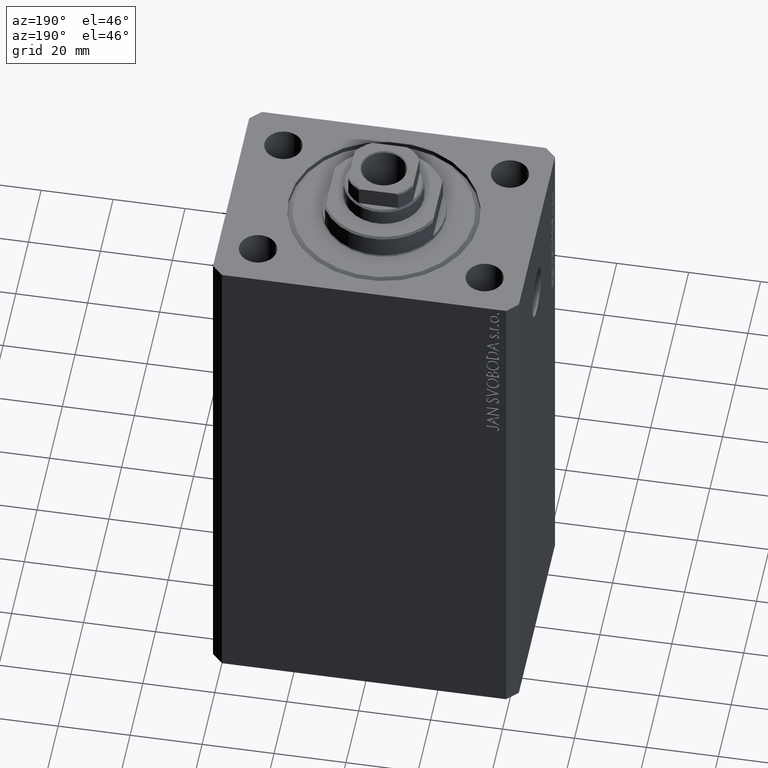
[diagram: clean part render]
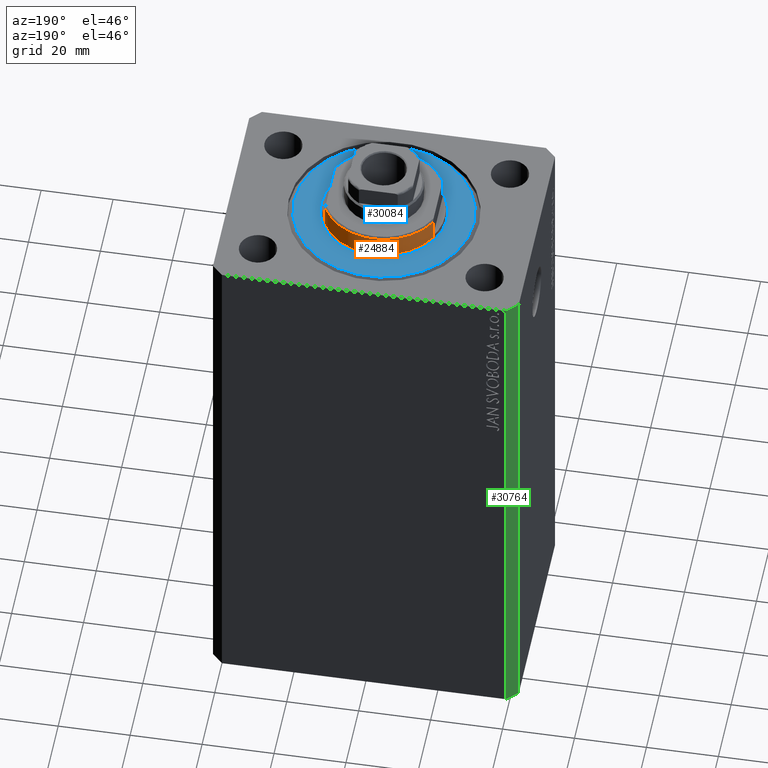
[diagram: same view with three faces highlighted in distinct colors, each labeled with its STEP entity id]
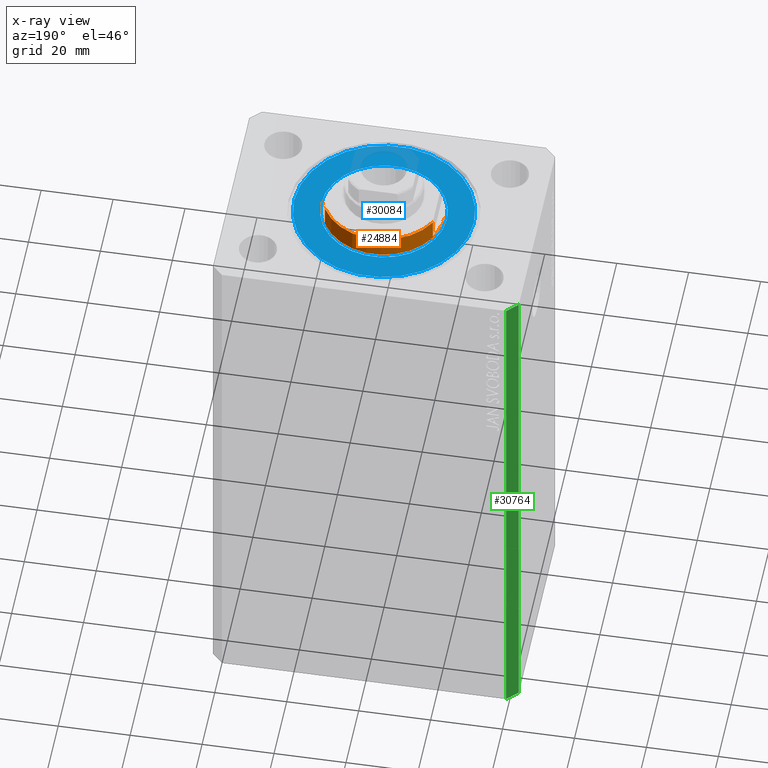
[diagram: x-ray of the same camera — body ghosted, the three highlighted faces saturated]
A machine part, auxiliary view with three faces highlighted in distinct colors.
The next image is the same camera in x-ray (body ghosted, the three faces saturated) — at least one of them is partly hidden behind the body in this view.
Their STEP definitions:

[orange] entity #24884 — the highlighted cylindrical surface (partial cylindrical patch) has radius 17 mm, axis along (0, 0, -1).
#227 = CARTESIAN_POINT ( 'NONE',  ( 14.99999999999999645, 8.000000000000003553, -1.000000000000000000 ) ) ;
#381 = DIRECTION ( 'NONE',  ( -1.000000000000000000, 0.000000000000000000, 0.000000000000000000 ) ) ;
#883 = CARTESIAN_POINT ( 'NONE',  ( 17.00000000000000000, 0.000000000000000000, -1.000000000000000000 ) ) ;
#1557 = EDGE_CURVE ( 'NONE', #23623, #10506, #26157, .T. ) ;
#2156 = DIRECTION ( 'NONE',  ( -1.000000000000000000, 0.000000000000000000, 0.000000000000000000 ) ) ;
#2224 = VERTEX_POINT ( 'NONE', #14977 ) ;
#2701 = LINE ( 'NONE', #30023, #35655 ) ;
#3832 = ORIENTED_EDGE ( 'NONE', *, *, #1557, .T. ) ;
#6582 = EDGE_CURVE ( 'NONE', #38173, #39885, #42112, .T. ) ;
#6943 = EDGE_LOOP ( 'NONE', ( #32971, #20167, #32699, #25164, #28456, #36541, #3832, #36187 ) ) ;
#7025 = EDGE_CURVE ( 'NONE', #22996, #38173, #2701, .T. ) ;
#7573 = DIRECTION ( 'NONE',  ( 0.000000000000000000, 0.000000000000000000, -1.000000000000000000 ) ) ;
#7598 = EDGE_CURVE ( 'NONE', #22461, #39885, #15485, .T. ) ;
#8107 = DIRECTION ( 'NONE',  ( -0.000000000000000000, -0.000000000000000000, 1.000000000000000000 ) ) ;
#8112 = VERTEX_POINT ( 'NONE', #227 ) ;
#8242 = CARTESIAN_POINT ( 'NONE',  ( 17.00000000000000000, 0.000000000000000000, -7.000000000000000000 ) ) ;
#8484 = CARTESIAN_POINT ( 'NONE',  ( 0.000000000000000000, 0.000000000000000000, -0.4999999999999995559 ) ) ;
#9126 = CARTESIAN_POINT ( 'NONE',  ( 0.000000000000000000, 0.000000000000000000, -6.500000000000013323 ) ) ;
#9151 = DIRECTION ( 'NONE',  ( -0.000000000000000000, -0.000000000000000000, -1.000000000000000000 ) ) ;
#9590 = AXIS2_PLACEMENT_3D ( 'NONE', #15728, #43219, #16172 ) ;
#9712 = CARTESIAN_POINT ( 'NONE',  ( 15.00000000000000000, 8.000000000000001776, -7.000000000000000000 ) ) ;
#10506 = VERTEX_POINT ( 'NONE', #11284 ) ;
#10955 = CARTESIAN_POINT ( 'NONE',  ( 0.000000000000000000, 0.000000000000000000, -1.000000000000000000 ) ) ;
#11019 = DIRECTION ( 'NONE',  ( 0.000000000000000000, 0.000000000000000000, 1.000000000000000000 ) ) ;
#11284 = CARTESIAN_POINT ( 'NONE',  ( -15.00000000000000000, 8.000000000000001776, -6.500000000000013323 ) ) ;
#12313 = VECTOR ( 'NONE', #8107, 1000.000000000000000 ) ;
#12532 = EDGE_CURVE ( 'NONE', #23623, #8112, #23276, .T. ) ;
#13322 = AXIS2_PLACEMENT_3D ( 'NONE', #8484, #9151, #19562 ) ;
#14222 = EDGE_CURVE ( 'NONE', #8112, #22461, #32127, .T. ) ;
#14977 = CARTESIAN_POINT ( 'NONE',  ( -14.99999999999999645, 8.000000000000003553, -1.000000000000000000 ) ) ;
#15485 = LINE ( 'NONE', #8242, #42857 ) ;
#15728 = CARTESIAN_POINT ( 'NONE',  ( 0.000000000000000000, 0.000000000000000000, -1.000000000000000000 ) ) ;
#16172 = DIRECTION ( 'NONE',  ( -1.000000000000000000, 0.000000000000000000, 0.000000000000000000 ) ) ;
#19082 = CARTESIAN_POINT ( 'NONE',  ( 15.00000000000000000, 8.000000000000001776, -6.500000000000013323 ) ) ;
#19562 = DIRECTION ( 'NONE',  ( 1.000000000000000000, 0.000000000000000000, 0.000000000000000000 ) ) ;
#20035 = CYLINDRICAL_SURFACE ( 'NONE', #39667, 17.00000000000000000 ) ;
#20167 = ORIENTED_EDGE ( 'NONE', *, *, #7025, .T. ) ;
#20579 = VECTOR ( 'NONE', #40847, 1000.000000000000000 ) ;
#22461 = VERTEX_POINT ( 'NONE', #883 ) ;
#22996 = VERTEX_POINT ( 'NONE', #24009 ) ;
#23163 = CARTESIAN_POINT ( 'NONE',  ( -17.00000000000000000, 2.081899558550500280E-15, -0.4999999999999995559 ) ) ;
#23276 = LINE ( 'NONE', #9712, #20579 ) ;
#23623 = VERTEX_POINT ( 'NONE', #19082 ) ;
#24009 = CARTESIAN_POINT ( 'NONE',  ( -17.00000000000000000, 2.081899558550500280E-15, -1.000000000000000000 ) ) ;
#24400 = LINE ( 'NONE', #25278, #12313 ) ;
#24884 = ADVANCED_FACE ( 'NONE', ( #27013 ), #20035, .T. ) ;
#25164 = ORIENTED_EDGE ( 'NONE', *, *, #7598, .F. ) ;
#25278 = CARTESIAN_POINT ( 'NONE',  ( -15.00000000000000000, 8.000000000000001776, -7.000000000000000000 ) ) ;
#25721 = EDGE_CURVE ( 'NONE', #10506, #2224, #24400, .T. ) ;
#26157 = CIRCLE ( 'NONE', #44136, 17.00000000000000000 ) ;
#27013 = FACE_OUTER_BOUND ( 'NONE', #6943, .T. ) ;
#28456 = ORIENTED_EDGE ( 'NONE', *, *, #14222, .F. ) ;
#30023 = CARTESIAN_POINT ( 'NONE',  ( -17.00000000000000000, 2.081899558550500280E-15, -7.000000000000000000 ) ) ;
#30187 = DIRECTION ( 'NONE',  ( 1.000000000000000000, 0.000000000000000000, 0.000000000000000000 ) ) ;
#30412 = CARTESIAN_POINT ( 'NONE',  ( 0.000000000000000000, 0.000000000000000000, -7.000000000000000000 ) ) ;
#32127 = CIRCLE ( 'NONE', #41473, 17.00000000000000000 ) ;
#32699 = ORIENTED_EDGE ( 'NONE', *, *, #6582, .T. ) ;
#32971 = ORIENTED_EDGE ( 'NONE', *, *, #38287, .F. ) ;
#33775 = DIRECTION ( 'NONE',  ( -0.000000000000000000, -0.000000000000000000, 1.000000000000000000 ) ) ;
#35333 = DIRECTION ( 'NONE',  ( -0.000000000000000000, -0.000000000000000000, 1.000000000000000000 ) ) ;
#35655 = VECTOR ( 'NONE', #44636, 1000.000000000000000 ) ;
#36187 = ORIENTED_EDGE ( 'NONE', *, *, #25721, .T. ) ;
#36541 = ORIENTED_EDGE ( 'NONE', *, *, #12532, .F. ) ;
#38173 = VERTEX_POINT ( 'NONE', #23163 ) ;
#38287 = EDGE_CURVE ( 'NONE', #22996, #2224, #41323, .T. ) ;
#39667 = AXIS2_PLACEMENT_3D ( 'NONE', #30412, #33775, #30187 ) ;
#39885 = VERTEX_POINT ( 'NONE', #44582 ) ;
#40847 = DIRECTION ( 'NONE',  ( -0.000000000000000000, -0.000000000000000000, 1.000000000000000000 ) ) ;
#41323 = CIRCLE ( 'NONE', #9590, 17.00000000000000000 ) ;
#41473 = AXIS2_PLACEMENT_3D ( 'NONE', #10955, #7573, #381 ) ;
#42112 = CIRCLE ( 'NONE', #13322, 17.00000000000000000 ) ;
#42857 = VECTOR ( 'NONE', #35333, 1000.000000000000000 ) ;
#43219 = DIRECTION ( 'NONE',  ( 0.000000000000000000, 0.000000000000000000, -1.000000000000000000 ) ) ;
#44136 = AXIS2_PLACEMENT_3D ( 'NONE', #9126, #11019, #2156 ) ;
#44582 = CARTESIAN_POINT ( 'NONE',  ( 17.00000000000000000, 0.000000000000000000, -0.4999999999999995559 ) ) ;
#44636 = DIRECTION ( 'NONE',  ( -0.000000000000000000, -0.000000000000000000, 1.000000000000000000 ) ) ;

[blue] entity #30084 — the highlighted planar face has unit normal (0, 0, -1).
#953 = ORIENTED_EDGE ( 'NONE', *, *, #40778, .T. ) ;
#1134 = CIRCLE ( 'NONE', #11230, 17.50000000000000000 ) ;
#1168 = CIRCLE ( 'NONE', #40759, 17.50000000000000000 ) ;
#1407 = ORIENTED_EDGE ( 'NONE', *, *, #14953, .T. ) ;
#2032 = CARTESIAN_POINT ( 'NONE',  ( 0.000000000000000000, 0.000000000000000000, 0.000000000000000000 ) ) ;
#2055 = CIRCLE ( 'NONE', #21558, 24.99999999999998224 ) ;
#4268 = DIRECTION ( 'NONE',  ( 1.000000000000000000, 0.000000000000000000, 0.000000000000000000 ) ) ;
#9741 = CARTESIAN_POINT ( 'NONE',  ( 24.99999999999998224, 0.000000000000000000, 0.000000000000000000 ) ) ;
#9849 = CARTESIAN_POINT ( 'NONE',  ( 0.000000000000000000, 0.000000000000000000, 0.000000000000000000 ) ) ;
#10873 = DIRECTION ( 'NONE',  ( 1.000000000000000000, 0.000000000000000000, 0.000000000000000000 ) ) ;
#10879 = VERTEX_POINT ( 'NONE', #14140 ) ;
#11230 = AXIS2_PLACEMENT_3D ( 'NONE', #31143, #42151, #4268 ) ;
#11728 = FACE_OUTER_BOUND ( 'NONE', #26207, .T. ) ;
#13261 = DIRECTION ( 'NONE',  ( 0.000000000000000000, 0.000000000000000000, 1.000000000000000000 ) ) ;
#14140 = CARTESIAN_POINT ( 'NONE',  ( 17.50000000000000000, 0.000000000000000000, 2.168404344971008868E-16 ) ) ;
#14953 = EDGE_CURVE ( 'NONE', #10879, #35986, #1168, .T. ) ;
#16194 = DIRECTION ( 'NONE',  ( 1.000000000000000000, 0.000000000000000000, 0.000000000000000000 ) ) ;
#17423 = AXIS2_PLACEMENT_3D ( 'NONE', #26872, #23267, #36790 ) ;
#19197 = DIRECTION ( 'NONE',  ( 1.000000000000000000, 0.000000000000000000, -0.000000000000000000 ) ) ;
#21292 = CARTESIAN_POINT ( 'NONE',  ( 0.000000000000000000, 0.000000000000000000, 0.000000000000000000 ) ) ;
#21504 = DIRECTION ( 'NONE',  ( -0.000000000000000000, -0.000000000000000000, -1.000000000000000000 ) ) ;
#21558 = AXIS2_PLACEMENT_3D ( 'NONE', #21292, #21504, #10873 ) ;
#22570 = PLANE ( 'NONE',  #33213 ) ;
#23267 = DIRECTION ( 'NONE',  ( -0.000000000000000000, -0.000000000000000000, -1.000000000000000000 ) ) ;
#24563 = VERTEX_POINT ( 'NONE', #40351 ) ;
#25285 = FACE_BOUND ( 'NONE', #41526, .T. ) ;
#26207 = EDGE_LOOP ( 'NONE', ( #42781, #34599 ) ) ;
#26872 = CARTESIAN_POINT ( 'NONE',  ( 0.000000000000000000, 0.000000000000000000, 0.000000000000000000 ) ) ;
#30084 = ADVANCED_FACE ( 'NONE', ( #25285, #11728 ), #22570, .F. ) ;
#31143 = CARTESIAN_POINT ( 'NONE',  ( 0.000000000000000000, 0.000000000000000000, 0.000000000000000000 ) ) ;
#33213 = AXIS2_PLACEMENT_3D ( 'NONE', #2032, #35653, #19197 ) ;
#34184 = EDGE_CURVE ( 'NONE', #24563, #41233, #39006, .T. ) ;
#34599 = ORIENTED_EDGE ( 'NONE', *, *, #34184, .T. ) ;
#35313 = CARTESIAN_POINT ( 'NONE',  ( -17.50000000000000000, 2.143131898507868643E-15, 2.168404344971008868E-16 ) ) ;
#35653 = DIRECTION ( 'NONE',  ( 0.000000000000000000, 0.000000000000000000, 1.000000000000000000 ) ) ;
#35986 = VERTEX_POINT ( 'NONE', #35313 ) ;
#36790 = DIRECTION ( 'NONE',  ( 1.000000000000000000, 0.000000000000000000, 0.000000000000000000 ) ) ;
#39006 = CIRCLE ( 'NONE', #17423, 24.99999999999998224 ) ;
#40351 = CARTESIAN_POINT ( 'NONE',  ( -24.99999999999998224, 3.153465507804433615E-15, 0.000000000000000000 ) ) ;
#40759 = AXIS2_PLACEMENT_3D ( 'NONE', #9849, #13261, #16194 ) ;
#40778 = EDGE_CURVE ( 'NONE', #35986, #10879, #1134, .T. ) ;
#41233 = VERTEX_POINT ( 'NONE', #9741 ) ;
#41526 = EDGE_LOOP ( 'NONE', ( #1407, #953 ) ) ;
#42151 = DIRECTION ( 'NONE',  ( 0.000000000000000000, 0.000000000000000000, 1.000000000000000000 ) ) ;
#42781 = ORIENTED_EDGE ( 'NONE', *, *, #43581, .T. ) ;
#43581 = EDGE_CURVE ( 'NONE', #41233, #24563, #2055, .T. ) ;

[green] entity #30764 — the highlighted planar face has unit normal (-0.7071, 0.7071, 0).
#1932 = CARTESIAN_POINT ( 'NONE',  ( -39.50000000000000711, 31.50000000000000000, -153.0000000000000000 ) ) ;
#3420 = EDGE_CURVE ( 'NONE', #5169, #42276, #20996, .T. ) ;
#5169 = VERTEX_POINT ( 'NONE', #43977 ) ;
#5854 = VECTOR ( 'NONE', #9578, 1000.000000000000000 ) ;
#6065 = EDGE_CURVE ( 'NONE', #5169, #23707, #31386, .T. ) ;
#7037 = ORIENTED_EDGE ( 'NONE', *, *, #6065, .F. ) ;
#8901 = PLANE ( 'NONE',  #21731 ) ;
#9578 = DIRECTION ( 'NONE',  ( -0.7071067811865471286, -0.7071067811865479058, 0.000000000000000000 ) ) ;
#14242 = VERTEX_POINT ( 'NONE', #24519 ) ;
#15694 = DIRECTION ( 'NONE',  ( -0.7071067811865479058, 0.7071067811865471286, 0.000000000000000000 ) ) ;
#15931 = CARTESIAN_POINT ( 'NONE',  ( -42.50000000000000000, 28.50000000000000000, -153.0000000000000000 ) ) ;
#16321 = ORIENTED_EDGE ( 'NONE', *, *, #3420, .T. ) ;
#16379 = CARTESIAN_POINT ( 'NONE',  ( -39.50000000000000711, 31.50000000000000000, 0.000000000000000000 ) ) ;
#17157 = CARTESIAN_POINT ( 'NONE',  ( -39.50000000000000711, 31.50000000000000000, -153.0000000000000000 ) ) ;
#18784 = CARTESIAN_POINT ( 'NONE',  ( -42.50000000000000000, 28.50000000000000000, -153.0000000000000000 ) ) ;
#20996 = LINE ( 'NONE', #17157, #26903 ) ;
#21731 = AXIS2_PLACEMENT_3D ( 'NONE', #1932, #15694, #29469 ) ;
#22910 = FACE_OUTER_BOUND ( 'NONE', #40853, .T. ) ;
#23391 = VECTOR ( 'NONE', #39232, 1000.000000000000000 ) ;
#23707 = VERTEX_POINT ( 'NONE', #24456 ) ;
#24456 = CARTESIAN_POINT ( 'NONE',  ( -39.50000000000000711, 31.50000000000000000, 0.000000000000000000 ) ) ;
#24519 = CARTESIAN_POINT ( 'NONE',  ( -42.50000000000000000, 28.50000000000000000, 0.000000000000000000 ) ) ;
#26903 = VECTOR ( 'NONE', #34727, 1000.000000000000000 ) ;
#29469 = DIRECTION ( 'NONE',  ( -0.7071067811865471286, -0.7071067811865479058, 0.000000000000000000 ) ) ;
#30276 = ORIENTED_EDGE ( 'NONE', *, *, #34167, .T. ) ;
#30764 = ADVANCED_FACE ( 'NONE', ( #22910 ), #8901, .T. ) ;
#31386 = LINE ( 'NONE', #31608, #23391 ) ;
#31608 = CARTESIAN_POINT ( 'NONE',  ( -39.50000000000000711, 31.50000000000000000, -153.0000000000000000 ) ) ;
#31750 = EDGE_CURVE ( 'NONE', #23707, #14242, #37563, .T. ) ;
#34167 = EDGE_CURVE ( 'NONE', #42276, #14242, #42447, .T. ) ;
#34727 = DIRECTION ( 'NONE',  ( -0.7071067811865471286, -0.7071067811865479058, 0.000000000000000000 ) ) ;
#36695 = ORIENTED_EDGE ( 'NONE', *, *, #31750, .F. ) ;
#37563 = LINE ( 'NONE', #16379, #5854 ) ;
#39232 = DIRECTION ( 'NONE',  ( 0.000000000000000000, 0.000000000000000000, 1.000000000000000000 ) ) ;
#39744 = VECTOR ( 'NONE', #42665, 1000.000000000000000 ) ;
#40853 = EDGE_LOOP ( 'NONE', ( #36695, #7037, #16321, #30276 ) ) ;
#42276 = VERTEX_POINT ( 'NONE', #15931 ) ;
#42447 = LINE ( 'NONE', #18784, #39744 ) ;
#42665 = DIRECTION ( 'NONE',  ( 0.000000000000000000, 0.000000000000000000, 1.000000000000000000 ) ) ;
#43977 = CARTESIAN_POINT ( 'NONE',  ( -39.50000000000000711, 31.50000000000000000, -153.0000000000000000 ) ) ;